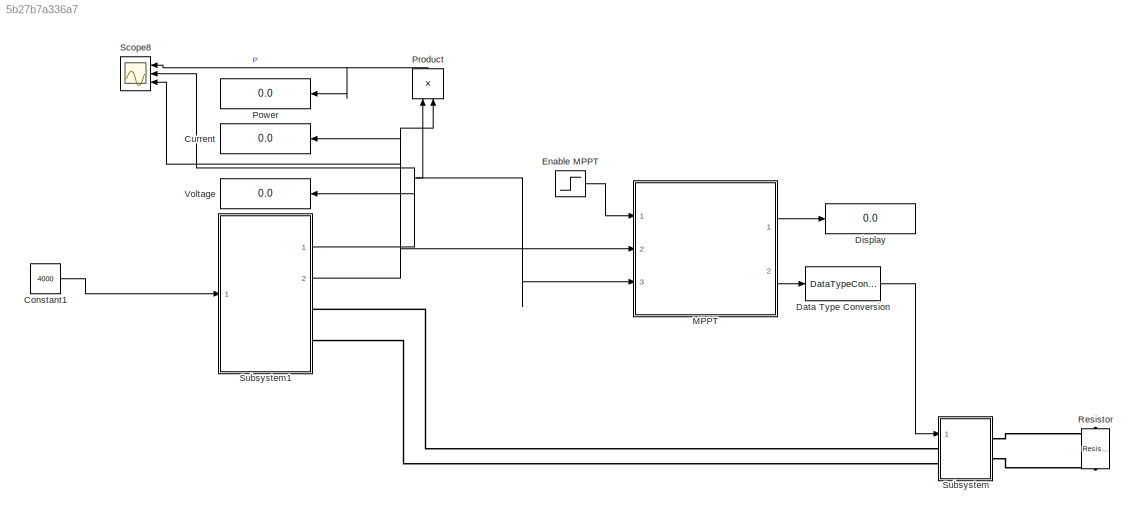
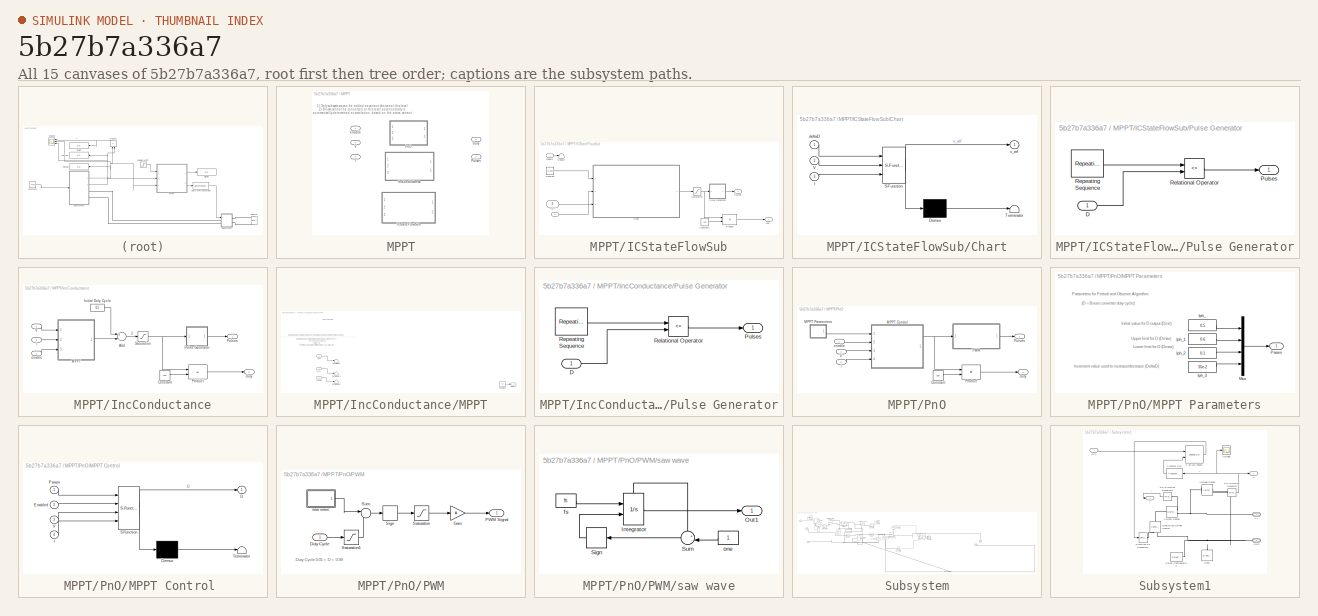
[diagram: thumbnail index - all 15 canvases of the model, root first then tree order]
MODEL slx_5b27b7a336a7
KIND model
BLOCK [Constant] Constant1
  Value = 4000
BLOCK [Display] Current
  Decimation = 1
  Ports = [1]
BLOCK [DataTypeConversion] Data Type Conversion
  OutDataTypeStr = double
  RndMeth = Floor
  SaturateOnIntegerOverflow = off
BLOCK [Display] Display
  Decimation = 1
  Ports = [1]
BLOCK [Step] Enable MPPT
  SampleTime = 0
  Time = 0.002
BLOCK [SubSystem] MPPT
  Ports = [3, 2]
  RequestExecContextInheritance = off
  Variant = on
BLOCK [Inport] MPPT/I
  IconDisplay = Port number
  Port = 3
BLOCK [SubSystem] MPPT/ICStateFlowSub
  Ports = [3, 2]
  RequestExecContextInheritance = off
  VariantControl = MPPT_IC_SF
BLOCK [SubSystem] MPPT/ICStateFlowSub/Chart
  ErrorFcn = Stateflow.Translate.translate
  PermitHierarchicalResolution = ExplicitOnly
  Ports = [3, 1]
  RequestExecContextInheritance = off
  SFBlockType = Chart
  TreatAsAtomicUnit = on
BLOCK [Demux] MPPT/ICStateFlowSub/Chart/ Demux 
  Outputs = 1
  Ports = [1, 1]
BLOCK [S-Function] MPPT/ICStateFlowSub/Chart/ SFunction 
  EnableBusSupport = on
  FunctionName = sf_sfun
  PortCounts = [3 2]
  Ports = [3, 2]
  Tag = Stateflow S-Function solar_cell_simscape 3
BLOCK [Terminator] MPPT/ICStateFlowSub/Chart/ Terminator 
BLOCK [Inport] MPPT/ICStateFlowSub/Chart/I
  IconDisplay = Port number
  Port = 3
BLOCK [Inport] MPPT/ICStateFlowSub/Chart/V
  IconDisplay = Port number
  Port = 2
BLOCK [Inport] MPPT/ICStateFlowSub/Chart/deltaD
  IconDisplay = Port number
BLOCK [Outport] MPPT/ICStateFlowSub/Chart/v_ref
  IconDisplay = Port number
BLOCK [Constant] MPPT/ICStateFlowSub/Constant
  Value = 0.005
BLOCK [Constant] MPPT/ICStateFlowSub/Constant1
  Value = 100
BLOCK [Terminator] MPPT/ICStateFlowSub/Enable 
BLOCK [Inport] MPPT/ICStateFlowSub/I
  IconDisplay = Port number
  Port = 2
BLOCK [Product] MPPT/ICStateFlowSub/Product
  InputSameDT = off
  OutDataTypeStr = Inherit: Inherit via internal rule
  Ports = [2, 1]
  SaturateOnIntegerOverflow = off
BLOCK [SubSystem] MPPT/ICStateFlowSub/Pulse Generator
  Ports = [1, 1]
  RequestExecContextInheritance = off
BLOCK [Inport] MPPT/ICStateFlowSub/Pulse Generator/D
  IconDisplay = Port number
BLOCK [Outport] MPPT/ICStateFlowSub/Pulse Generator/Pulses
  IconDisplay = Port number
BLOCK [RelationalOperator] MPPT/ICStateFlowSub/Pulse Generator/Relational Operator
  InputSameDT = off
  Operator = <=
  OutDataTypeStr = boolean
  Ports = [2, 1]
BLOCK [Reference] MPPT/ICStateFlowSub/Pulse Generator/Repeating Sequence  REF=simulink/Sources/Repeating
Sequence
  Ports = [0, 1]
  SourceBlock = simulink/Sources/Repeating\nSequence
  SourceType = Repeating table
  rep_seq_t = [0  1/Freq]
  rep_seq_y = [0 1]
BLOCK [Outport] MPPT/ICStateFlowSub/Pulses
  IconDisplay = Port number
BLOCK [Saturate] MPPT/ICStateFlowSub/Saturation
  InputPortMap = u0
  LowerLimit = 0
  Ports = [1, 1]
  UpperLimit = 1
BLOCK [Inport] MPPT/ICStateFlowSub/V
  IconDisplay = Port number
  Port = 3
BLOCK [Outport] MPPT/ICStateFlowSub/duty
  IconDisplay = Port number
  Port = 2
BLOCK [Inport] MPPT/ICStateFlowSub/enable
  IconDisplay = Port number
BLOCK [SubSystem] MPPT/IncConductance
  Ports = [3, 2]
  RequestExecContextInheritance = off
  VariantControl = MPPT_IC_logic
BLOCK [Sum] MPPT/IncConductance/Add
  InputSameDT = off
  Inputs = +-
  OutDataTypeStr = Inherit: Inherit via internal rule
  Ports = [2, 1]
  SaturateOnIntegerOverflow = off
BLOCK [Constant] MPPT/IncConductance/Constant
  Value = 100
BLOCK [Inport] MPPT/IncConductance/I
  IconDisplay = Port number
  Port = 3
BLOCK [Constant] MPPT/IncConductance/Initial Duty Cycle
  Value = 0.5
BLOCK [SubSystem] MPPT/IncConductance/MPPT
  Ports = [3, 1]
  RequestExecContextInheritance = off
BLOCK [Constant] MPPT/IncConductance/MPPT/Constant
  Value = 40
BLOCK [Outport] MPPT/IncConductance/MPPT/Delta_D
  IconDisplay = Port number
BLOCK [Inport] MPPT/IncConductance/MPPT/I_PV
  IconDisplay = Port number
  Port = 2
BLOCK [Terminator] MPPT/IncConductance/MPPT/Terminator
BLOCK [Terminator] MPPT/IncConductance/MPPT/Terminator1
BLOCK [Terminator] MPPT/IncConductance/MPPT/Terminator2
BLOCK [Inport] MPPT/IncConductance/MPPT/V_PV
  IconDisplay = Port number
BLOCK [Inport] MPPT/IncConductance/MPPT/enable
  IconDisplay = Port number
  Port = 3
BLOCK [Product] MPPT/IncConductance/Product
  InputSameDT = off
  OutDataTypeStr = Inherit: Inherit via internal rule
  Ports = [2, 1]
  SaturateOnIntegerOverflow = off
BLOCK [SubSystem] MPPT/IncConductance/Pulse Generator
  Ports = [1, 1]
  RequestExecContextInheritance = off
BLOCK [Inport] MPPT/IncConductance/Pulse Generator/D
  IconDisplay = Port number
BLOCK [Outport] MPPT/IncConductance/Pulse Generator/Pulses
  IconDisplay = Port number
BLOCK [RelationalOperator] MPPT/IncConductance/Pulse Generator/Relational Operator
  InputSameDT = off
  Operator = <=
  OutDataTypeStr = boolean
  Ports = [2, 1]
BLOCK [Reference] MPPT/IncConductance/Pulse Generator/Repeating Sequence  REF=simulink/Sources/Repeating
Sequence
  Ports = [0, 1]
  SourceBlock = simulink/Sources/Repeating\nSequence
  SourceType = Repeating table
  rep_seq_t = [0  1/Freq]
  rep_seq_y = [0 1]
BLOCK [Outport] MPPT/IncConductance/Pulses
  IconDisplay = Port number
BLOCK [Saturate] MPPT/IncConductance/Saturation
  InputPortMap = u0
  LowerLimit = 0
  Ports = [1, 1]
  UpperLimit = 1
  ZeroCross = off
BLOCK [Inport] MPPT/IncConductance/V
  IconDisplay = Port number
  Port = 2
BLOCK [Outport] MPPT/IncConductance/duty
  IconDisplay = Port number
  Port = 2
BLOCK [Inport] MPPT/IncConductance/enable
  IconDisplay = Port number
BLOCK [SubSystem] MPPT/PnO
  Ports = [3, 2]
  RequestExecContextInheritance = off
  VariantControl = MPPT_PnO
BLOCK [Constant] MPPT/PnO/Constant
  Value = 100
BLOCK [Inport] MPPT/PnO/I
  IconDisplay = Port number
  Port = 3
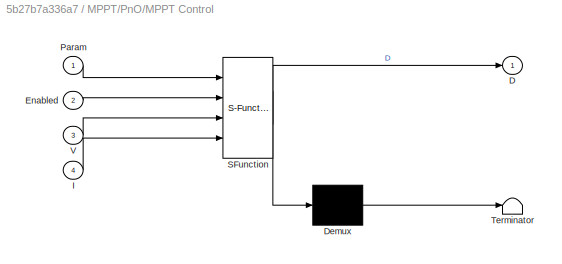
BLOCK [SubSystem] MPPT/PnO/MPPT Control 
  ErrorFcn = Stateflow.Translate.translate
  PermitHierarchicalResolution = ExplicitOnly
  Ports = [4, 1]
  RequestExecContextInheritance = off
  SFBlockType = MATLAB Function
  TreatAsAtomicUnit = on
BLOCK [Demux] MPPT/PnO/MPPT Control / Demux 
  Outputs = 1
  Ports = [1, 1]
BLOCK [S-Function] MPPT/PnO/MPPT Control / SFunction 
  EnableBusSupport = on
  FunctionName = sf_sfun
  PortCounts = [4 2]
  Ports = [4, 2]
  Tag = Stateflow S-Function solar_cell_simscape 2
BLOCK [Terminator] MPPT/PnO/MPPT Control / Terminator 
BLOCK [Outport] MPPT/PnO/MPPT Control /D
  IconDisplay = Port number
BLOCK [Inport] MPPT/PnO/MPPT Control /Enabled
  IconDisplay = Port number
  Port = 2
BLOCK [Inport] MPPT/PnO/MPPT Control /I
  IconDisplay = Port number
  Port = 4
BLOCK [Inport] MPPT/PnO/MPPT Control /Param
  IconDisplay = Port number
BLOCK [Inport] MPPT/PnO/MPPT Control /V
  IconDisplay = Port number
  Port = 3
BLOCK [SubSystem] MPPT/PnO/MPPT Parameters
  Ports = [0, 1]
  RequestExecContextInheritance = off
BLOCK [Constant] MPPT/PnO/MPPT Parameters/Iph_
  Value = 0.5
BLOCK [Constant] MPPT/PnO/MPPT Parameters/Iph_1
  Value = 0.6
BLOCK [Constant] MPPT/PnO/MPPT Parameters/Iph_2
  Value = 0.1
BLOCK [Constant] MPPT/PnO/MPPT Parameters/Iph_3
  Value = 35e-2
BLOCK [Mux] MPPT/PnO/MPPT Parameters/Mux
  DisplayOption = bar
  Ports = [4, 1]
BLOCK [Outport] MPPT/PnO/MPPT Parameters/Param
  IconDisplay = Port number
BLOCK [SubSystem] MPPT/PnO/PWM
  Ports = [1, 1]
  RequestExecContextInheritance = off
BLOCK [Inport] MPPT/PnO/PWM/Duty Cycle
  IconDisplay = Port number
BLOCK [Gain] MPPT/PnO/PWM/Gain
  Gain = A
  OutDataTypeStr = Inherit: Inherit via internal rule
  ParamDataTypeStr = Inherit: Inherit via internal rule
  SaturateOnIntegerOverflow = off
BLOCK [Outport] MPPT/PnO/PWM/PWM Signal
  IconDisplay = Port number
BLOCK [Saturate] MPPT/PnO/PWM/Saturation
  InputPortMap = u0
  LowerLimit = 0
  Ports = [1, 1]
  UpperLimit = 1
BLOCK [Saturate] MPPT/PnO/PWM/Saturation1
  InputPortMap = u0
  LowerLimit = 0.01
  Ports = [1, 1]
  UpperLimit = 0.99
BLOCK [Signum] MPPT/PnO/PWM/Sign
BLOCK [Sum] MPPT/PnO/PWM/Sum
  IconShape = round
  InputSameDT = off
  Inputs = |-+
  OutDataTypeStr = Inherit: Inherit via internal rule
  Ports = [2, 1]
  SaturateOnIntegerOverflow = off
BLOCK [SubSystem] MPPT/PnO/PWM/saw wave
  Ports = [0, 1]
  RequestExecContextInheritance = off
BLOCK [Integrator] MPPT/PnO/PWM/saw wave/Integrator
  ExternalReset = rising
  Ports = [2, 1, 0, 0, 1]
  ShowStatePort = on
BLOCK [Outport] MPPT/PnO/PWM/saw wave/Out1
  IconDisplay = Port number
BLOCK [Signum] MPPT/PnO/PWM/saw wave/Sign
BLOCK [Sum] MPPT/PnO/PWM/saw wave/Sum
  IconShape = round
  InputSameDT = off
  Inputs = +-|
  OutDataTypeStr = Inherit: Inherit via internal rule
  Ports = [2, 1]
  SaturateOnIntegerOverflow = off
BLOCK [Constant] MPPT/PnO/PWM/saw wave/fs
  Value = fs
BLOCK [Constant] MPPT/PnO/PWM/saw wave/one
BLOCK [Product] MPPT/PnO/Product
  InputSameDT = off
  OutDataTypeStr = Inherit: Inherit via internal rule
  Ports = [2, 1]
  SaturateOnIntegerOverflow = off
BLOCK [Outport] MPPT/PnO/Pulses
  IconDisplay = Port number
BLOCK [Inport] MPPT/PnO/V
  IconDisplay = Port number
  Port = 2
BLOCK [Outport] MPPT/PnO/duty
  IconDisplay = Port number
  Port = 2
BLOCK [Inport] MPPT/PnO/enable
  IconDisplay = Port number
BLOCK [Outport] MPPT/Pulses
  IconDisplay = Port number
  Port = 2
BLOCK [Inport] MPPT/V
  IconDisplay = Port number
  Port = 2
BLOCK [Outport] MPPT/duty
  IconDisplay = Port number
BLOCK [Inport] MPPT/enable
  IconDisplay = Port number
BLOCK [Display] Power
  Decimation = 1
  Ports = [1]
BLOCK [Product] Product
  InputSameDT = off
  OutDataTypeStr = Inherit: Inherit via internal rule
  Ports = [2, 1]
  SaturateOnIntegerOverflow = off
BLOCK [Reference] Resistor  REF=fl_lib/Electrical/Electrical Elements/Resistor
  ClassName = resistor
  ComponentPath = foundation.electrical.elements.resistor
  ComponentVariantNames = resistor
  ComponentVariants = foundation.electrical.elements.resistor
  Ports = [0, 0, 0, 0, 0, 1, 1]
  R = 30
  R_unit = Ohm
  SchemaVersion = 1
  SourceBlock = fl_lib/Electrical/Electrical Elements/Resistor
  SourceFile = foundation.electrical.elements.resistor
  SourceType = Resistor
  i = 0
  i_priority = High
  i_specify = off
  i_unit = A
  v = 0
  v_priority = High
  v_specify = off
  v_unit = V
BLOCK [Scope] Scope8
  DataFormat = StructureWithTime
  Floating = off
  LimitDataPoints = off
  NumInputPorts = 3
  Ports = [3]
  SampleTime = 0
  SaveName = ScopeData9
  ShowLegends = off
  YMax = 2e+07~2.75~7e+06
  YMin = -1e+07~2~-4e+06
  ZoomMode = yonly
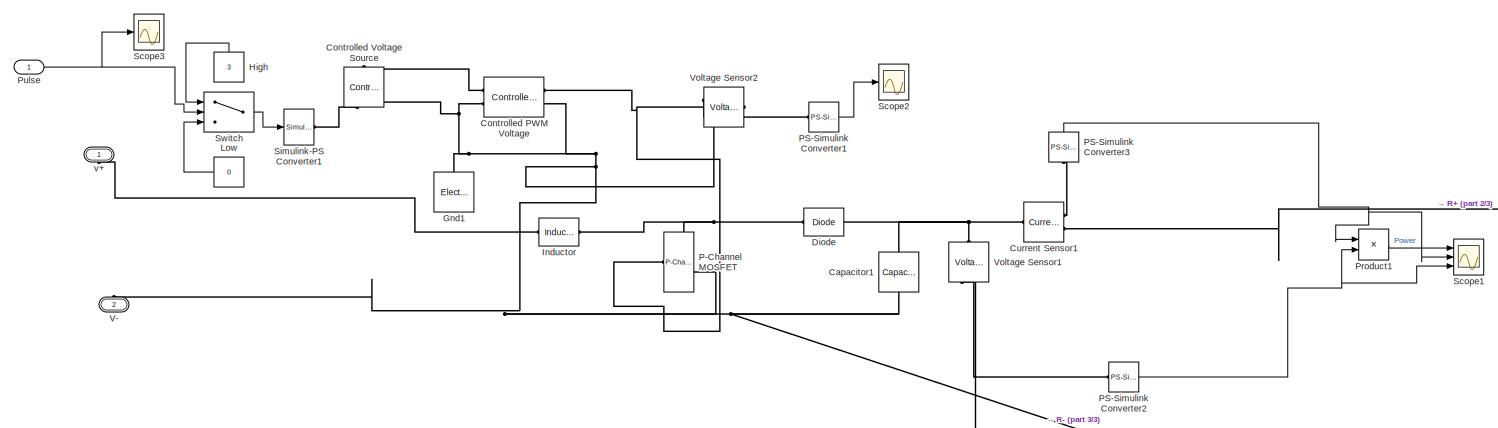
[diagram: Subsystem - part 1/3, middle left region]
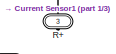
[diagram: Subsystem - part 2/3, middle right region]
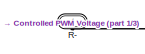
[diagram: Subsystem - part 3/3, middle right region]
BLOCK [SubSystem] Subsystem
  Ports = [1, 0, 0, 0, 0, 2, 2]
  RequestExecContextInheritance = off
BLOCK [Reference] Subsystem/Capacitor1  REF=fl_lib/Electrical/Electrical Elements/Capacitor
  ClassName = capacitor
  ComponentPath = foundation.electrical.elements.capacitor
  ComponentVariantNames = capacitor
  ComponentVariants = foundation.electrical.elements.capacitor
  Ports = [0, 0, 0, 0, 0, 1, 1]
  SchemaVersion = 1
  SourceBlock = fl_lib/Electrical/Electrical Elements/Capacitor
  SourceFile = foundation.electrical.elements.capacitor
  SourceType = Capacitor
  c = 33e-6
  c_unit = F
  g = 0
  g_unit = 1/Ohm
  i = 0
  i_priority = High
  i_specify = off
  i_unit = A
  r = 1e-6
  r_unit = Ohm
  v = 0
  v_priority = High
  v_specify = off
  v_unit = V
  vc = 0
  vc_priority = High
  vc_specify = off
  vc_unit = V
BLOCK [Reference] Subsystem/Controlled PWM Voltage  REF=elec_lib/Actuators & Drivers/Drivers/Controlled PWM
Voltage
  ClassName = controlled_pwm
  ComponentPath = elec.actuators.drivers.controlled_pwm
  ComponentVariantNames = controlled_pwm
  ComponentVariants = elec.actuators.drivers.controlled_pwm
  F = 1
  F_unit = Hz
  Ports = [0, 0, 0, 0, 0, 2, 2]
  SchemaVersion = 1
  SourceBlock = elec_lib/Actuators & Drivers/Drivers/Controlled PWM\nVoltage
  SourceFile = elec.actuators.drivers.controlled_pwm
  SourceType = Controlled PWM\nVoltage
  TD = 0
  TD_unit = s
  Vm = 3
  Vm_unit = V
  Vmax = 3
  Vmax_unit = V
  Vmin = 0
  Vmin_unit = V
  event_type = 1
  event_type_unit = 1
  pulse_width_offset = 0
  pulse_width_offset_unit = s
  pwm_or_av = 1
  pwm_or_av_unit = 1
  sample_time = 1e-6
  sample_time_unit = s
BLOCK [Reference] Subsystem/Controlled Voltage Source  REF=fl_lib/Electrical/Electrical Sources/Controlled Voltage
Source
  ClassName = controlled_voltage
  ComponentPath = foundation.electrical.sources.controlled_voltage
  ComponentVariantNames = controlled_voltage
  ComponentVariants = foundation.electrical.sources.controlled_voltage
  Ports = [0, 0, 0, 0, 0, 1, 2]
  SchemaVersion = 1
  SourceBlock = fl_lib/Electrical/Electrical Sources/Controlled Voltage\nSource
  SourceFile = foundation.electrical.sources.controlled_voltage
  SourceType = Controlled Voltage\nSource
BLOCK [Reference] Subsystem/Current Sensor1  REF=fl_lib/Electrical/Electrical Sensors/Current Sensor
  ClassName = current
  ComponentPath = foundation.electrical.sensors.current
  ComponentVariantNames = current
  ComponentVariants = foundation.electrical.sensors.current
  Ports = [0, 0, 0, 0, 0, 1, 2]
  SchemaVersion = 1
  SourceBlock = fl_lib/Electrical/Electrical Sensors/Current Sensor
  SourceFile = foundation.electrical.sensors.current
  SourceType = Current Sensor
BLOCK [Reference] Subsystem/Diode  REF=fl_lib/Electrical/Electrical Elements/Diode
  ClassName = pwl_diode
  ComponentPath = foundation.electrical.elements.pwl_diode
  ComponentVariantNames = pwl_diode
  ComponentVariants = foundation.electrical.elements.pwl_diode
  Goff = 1e-8
  Goff_unit = 1/Ohm
  Ports = [0, 0, 0, 0, 0, 1, 1]
  Ron = 1e-4
  Ron_unit = Ohm
  SchemaVersion = 1
  SourceBlock = fl_lib/Electrical/Electrical Elements/Diode
  SourceFile = foundation.electrical.elements.pwl_diode
  SourceType = Diode
  Vf = 0.6
  Vf_unit = V
  i = 0
  i_priority = High
  i_specify = off
  i_unit = A
  v = 0
  v_priority = High
  v_specify = off
  v_unit = V
BLOCK [Reference] Subsystem/Gnd1  REF=fl_lib/Electrical/Electrical Elements/Electrical Reference
  ClassName = reference
  ComponentPath = foundation.electrical.elements.reference
  ComponentVariantNames = reference
  ComponentVariants = foundation.electrical.elements.reference
  Ports = [0, 0, 0, 0, 0, 1]
  SchemaVersion = 1
  SourceBlock = fl_lib/Electrical/Electrical Elements/Electrical Reference
  SourceFile = foundation.electrical.elements.reference
  SourceType = Electrical Reference
BLOCK [Constant] Subsystem/High
  Value = 3
BLOCK [Reference] Subsystem/Inductor  REF=fl_lib/Electrical/Electrical Elements/Inductor
  ClassName = inductor
  ComponentPath = foundation.electrical.elements.inductor
  ComponentVariantNames = inductor
  ComponentVariants = foundation.electrical.elements.inductor
  Ports = [0, 0, 0, 0, 0, 1, 1]
  SchemaVersion = 1
  SourceBlock = fl_lib/Electrical/Electrical Elements/Inductor
  SourceFile = foundation.electrical.elements.inductor
  SourceType = Inductor
  g = 1e-9
  g_unit = 1/Ohm
  i = 0
  i_L = 0
  i_L_priority = High
  i_L_specify = off
  i_L_unit = A
  i_priority = High
  i_specify = off
  i_unit = A
  l = 5e-3
  l_unit = H
  r = 0.005
  r_unit = Ohm
  v = 0
  v_priority = High
  v_specify = off
  v_unit = V
BLOCK [Constant] Subsystem/Low
  Value = 0
BLOCK [Reference] Subsystem/P-Channel MOSFET  REF=elec_lib/Semiconductor
Devices/P-Channel MOSFET
  BEXDatasheet = -1.5
  BEXDatasheet_unit = 1
  BEXEquCoeff = -1.5
  BEXEquCoeff_unit = 1
  Beta = 2
  Beta_unit = A/V^2
  C_GD = 45
  C_GD_unit = pF
  C_GS = 225
  C_GS_unit = pF
  C_OX = 200
  C_OX_unit = pF
  C_iss = 270
  C_iss_unit = pF
  C_oss = 0
  C_oss_unit = pF
  C_param = 1
  C_param_unit = 1
  C_rss = 45
  C_rss_unit = pF
  ClassName = Simscape variant
  ComponentPath = elec.semiconductors.p_mosfet
  ComponentVariantNames = No thermal port, Show thermal port
  ComponentVariants = elec.semiconductors.p_mosfet, elec.semiconductors.p_mosfet_thermal
  Id = -2.5
  Id_unit = A
  Ports = [0, 0, 0, 0, 0, 1, 2]
  RD = 0.01
  RD_unit = Ohm
  RS = 1e-4
  RS_unit = Ohm
  Rds = 0.167
  Rds_T2 = 0.25
  Rds_T2_unit = Ohm
  Rds_unit = Ohm
  Rth = [ 0 10 ]
  Rth_unit = K/W
  SchemaVersion = 1
  SourceBlock = elec_lib/Semiconductor\nDevices/P-Channel MOSFET
  SourceFile = elec.semiconductors.p_mosfet
  SourceType = P-Channel MOSFET
  TdeviceDatasheet = 25
  TdeviceDatasheet_unit = C
  TdeviceEquCoeff = 25
  TdeviceEquCoeff_unit = C
  Tmeas = 25
  Tmeas2 = 125
  Tmeas2_unit = C
  Tmeas_unit = C
  V_C_OX = 0.5
  V_C_OX_unit = V
  Vgs = -4.5
  Vgs_unit = V
  Vth = -1.4
  Vth_unit = V
  charge_linearity_param = 1
  charge_linearity_param_unit = 1
  dVth_dT = 2
  dVth_dT_unit = mV/K
  lam = 0
  lam_unit = 1/V
  parameterization = 1
  parameterization_unit = 1
  prmDatasheet = 1
  prmDatasheet_unit = 1
  prmEquCoeff = 1
  prmEquCoeff_unit = 1
  thermal_mass = [ 0 1 ]
  thermal_mass_initial_temperatures = [ 25 25 ]
  thermal_mass_initial_temperatures_unit = C
  thermal_mass_parameterization = 1
  thermal_mass_parameterization_unit = 1
  thermal_mass_unit = J/K
  thermal_time_constant = [ 0 10 ]
  thermal_time_constant_unit = s
BLOCK [Reference] Subsystem/PS-Simulink Converter1  REF=nesl_utility/PS-Simulink
Converter
  AffineConversion = off
  Frequencies = []
  LeftPortType = input
  PhysicalDomain = network_engine_domain
  Ports = [0, 1, 0, 0, 0, 1]
  PseudoPeriodic = off
  RightPortType = output
  SourceBlock = nesl_utility/PS-Simulink\nConverter
  SourceType = PS-Simulink\nConverter
  SubClassName = ps_output
  Unit = 1
BLOCK [Reference] Subsystem/PS-Simulink Converter2  REF=nesl_utility/PS-Simulink
Converter
  AffineConversion = off
  Frequencies = []
  LeftPortType = input
  PhysicalDomain = network_engine_domain
  Ports = [0, 1, 0, 0, 0, 1]
  PseudoPeriodic = off
  RightPortType = output
  SourceBlock = nesl_utility/PS-Simulink\nConverter
  SourceType = PS-Simulink\nConverter
  SubClassName = ps_output
  Unit = 1
BLOCK [Reference] Subsystem/PS-Simulink Converter3  REF=nesl_utility/PS-Simulink
Converter
  AffineConversion = off
  Frequencies = []
  LeftPortType = input
  PhysicalDomain = network_engine_domain
  Ports = [0, 1, 0, 0, 0, 1]
  PseudoPeriodic = off
  RightPortType = output
  SourceBlock = nesl_utility/PS-Simulink\nConverter
  SourceType = PS-Simulink\nConverter
  SubClassName = ps_output
  Unit = 1
BLOCK [Product] Subsystem/Product1
  InputSameDT = off
  OutDataTypeStr = Inherit: Inherit via internal rule
  Ports = [2, 1]
  SaturateOnIntegerOverflow = off
BLOCK [Inport] Subsystem/Pulse
  IconDisplay = Port number
BLOCK [PMIOPort] Subsystem/R+
  Port = 3
  Side = Right
BLOCK [PMIOPort] Subsystem/R-
  Port = 4
  Side = Right
BLOCK [Scope] Subsystem/Scope1
  DataFormat = StructureWithTime
  Floating = off
  LimitDataPoints = off
  NumInputPorts = 3
  Ports = [3]
  SampleTime = 0
  ShowLegends = off
  YMax = 0.8925~0.1725~5.17
  YMin = 0.86~0.1695~5.085
  ZoomMode = yonly
BLOCK [Scope] Subsystem/Scope2
  DataFormat = StructureWithTime
  Floating = off
  LimitDataPoints = off
  NumInputPorts = 1
  Ports = [1]
  SampleTime = 0
  SaveName = ScopeData1
  ShowLegends = off
  YMax = 3
  YMin = 3
  ZoomMode = xonly
BLOCK [Scope] Subsystem/Scope3
  DataFormat = StructureWithTime
  Floating = off
  LimitDataPoints = off
  NumInputPorts = 1
  Ports = [1]
  SampleTime = 0
  SaveName = ScopeData2
  ShowLegends = off
  YMax = 1.05
  YMin = 0.95
  ZoomMode = xonly
BLOCK [Reference] Subsystem/Simulink-PS Converter1  REF=nesl_utility/Simulink-PS
Converter
  AffineConversion = off
  Frequencies = []
  InputFilterTimeConstant = 0.001
  InputFiltering = off
  LeftPortType = input
  NoiseDistribution = none
  NoiseParameters = []
  PhysicalDomain = network_engine_domain
  Ports = [1, 0, 0, 0, 0, 0, 1]
  PseudoPeriodic = off
  RightPortType = output
  SimscapeFilterOrder = 1
  SourceBlock = nesl_utility/Simulink-PS\nConverter
  SourceType = Simulink-PS\nConverter
  SubClassName = ps_input
  UdotUserProvided = 1
  Unit = 1
BLOCK [Switch] Subsystem/Switch
  Criteria = u2 > Threshold
  InputSameDT = off
  SaturateOnIntegerOverflow = off
BLOCK [PMIOPort] Subsystem/V-
  Port = 2
  Side = Left
BLOCK [Reference] Subsystem/Voltage Sensor1  REF=fl_lib/Electrical/Electrical Sensors/Voltage Sensor
  ClassName = voltage
  ComponentPath = foundation.electrical.sensors.voltage
  ComponentVariantNames = voltage
  ComponentVariants = foundation.electrical.sensors.voltage
  Ports = [0, 0, 0, 0, 0, 1, 2]
  SchemaVersion = 1
  SourceBlock = fl_lib/Electrical/Electrical Sensors/Voltage Sensor
  SourceFile = foundation.electrical.sensors.voltage
  SourceType = Voltage Sensor
BLOCK [Reference] Subsystem/Voltage Sensor2  REF=fl_lib/Electrical/Electrical Sensors/Voltage Sensor
  ClassName = voltage
  ComponentPath = foundation.electrical.sensors.voltage
  ComponentVariantNames = voltage
  ComponentVariants = foundation.electrical.sensors.voltage
  Ports = [0, 0, 0, 0, 0, 1, 2]
  SchemaVersion = 1
  SourceBlock = fl_lib/Electrical/Electrical Sensors/Voltage Sensor
  SourceFile = foundation.electrical.sensors.voltage
  SourceType = Voltage Sensor
BLOCK [PMIOPort] Subsystem/v+
  Port = 1
  Side = Left
BLOCK [SubSystem] Subsystem1
  Ports = [1, 2, 0, 0, 0, 0, 2]
  RequestExecContextInheritance = off
BLOCK [Lookup_n-D] Subsystem1/0 -5k Lux lookup
  BreakpointsForDimension1 = Irradiance
  BreakpointsForDimension2 = ArrayVoltage
  Ports = [2, 1]
  RndMeth = Simplest
  Table = ArrayCurrent
BLOCK [Reference] Subsystem1/Controlled Current Source  REF=fl_lib/Electrical/Electrical Sources/Controlled Current
Source
  ClassName = controlled_current
  ComponentPath = foundation.electrical.sources.controlled_current
  ComponentVariantNames = controlled_current
  ComponentVariants = foundation.electrical.sources.controlled_current
  Ports = [0, 0, 0, 0, 0, 1, 2]
  SchemaVersion = 1
  SourceBlock = fl_lib/Electrical/Electrical Sources/Controlled Current\nSource
  SourceFile = foundation.electrical.sources.controlled_current
  SourceType = Controlled Current\nSource
BLOCK [Reference] Subsystem1/Current Sensor  REF=fl_lib/Electrical/Electrical Sensors/Current Sensor
  ClassName = current
  ComponentPath = foundation.electrical.sensors.current
  ComponentVariantNames = current
  ComponentVariants = foundation.electrical.sensors.current
  Ports = [0, 0, 0, 0, 0, 1, 2]
  SchemaVersion = 1
  SourceBlock = fl_lib/Electrical/Electrical Sensors/Current Sensor
  SourceFile = foundation.electrical.sensors.current
  SourceType = Current Sensor
BLOCK [PMIOPort] Subsystem1/GND
  Port = 2
  Side = Right
BLOCK [Reference] Subsystem1/Gnd1  REF=fl_lib/Electrical/Electrical Elements/Electrical Reference
  ClassName = reference
  ComponentPath = foundation.electrical.elements.reference
  ComponentVariantNames = reference
  ComponentVariants = foundation.electrical.elements.reference
  Ports = [0, 0, 0, 0, 0, 1]
  SchemaVersion = 1
  SourceBlock = fl_lib/Electrical/Electrical Elements/Electrical Reference
  SourceFile = foundation.electrical.elements.reference
  SourceType = Electrical Reference
BLOCK [Outport] Subsystem1/I
  IconDisplay = Port number
BLOCK [Inport] Subsystem1/LUX
  IconDisplay = Port number
BLOCK [Reference] Subsystem1/PS-Simulink Converter  REF=nesl_utility/PS-Simulink
Converter
  AffineConversion = off
  Frequencies = []
  LeftPortType = input
  PhysicalDomain = network_engine_domain
  Ports = [0, 1, 0, 0, 0, 1]
  PseudoPeriodic = off
  RightPortType = output
  SourceBlock = nesl_utility/PS-Simulink\nConverter
  SourceType = PS-Simulink\nConverter
  SubClassName = ps_output
  Unit = 1
BLOCK [Reference] Subsystem1/PS-Simulink Converter1  REF=nesl_utility/PS-Simulink
Converter
  AffineConversion = off
  Frequencies = []
  LeftPortType = input
  PhysicalDomain = network_engine_domain
  Ports = [0, 1, 0, 0, 0, 1]
  PseudoPeriodic = off
  RightPortType = output
  SourceBlock = nesl_utility/PS-Simulink\nConverter
  SourceType = PS-Simulink\nConverter
  SubClassName = ps_output
  Unit = 1
BLOCK [Reference] Subsystem1/Simulink-PS Converter1  REF=nesl_utility/Simulink-PS
Converter
  AffineConversion = off
  Frequencies = []
  InputFilterTimeConstant = 0.001
  InputFiltering = off
  LeftPortType = input
  NoiseDistribution = none
  NoiseParameters = []
  PhysicalDomain = network_engine_domain
  Ports = [1, 0, 0, 0, 0, 0, 1]
  PseudoPeriodic = off
  RightPortType = output
  SimscapeFilterOrder = 1
  SourceBlock = nesl_utility/Simulink-PS\nConverter
  SourceType = Simulink-PS\nConverter
  SubClassName = ps_input
  UdotUserProvided = 1
  Unit = 1
BLOCK [Reference] Subsystem1/Solver Configuration  REF=nesl_utility/Solver
Configuration
  AbsTol = 1e-06
  Accelerate = off
  AutomaticFiltering = on
  DelaysMemoryBudget = 1024
  DoDC = off
  DoFixedCost = off
  EnableSwitchedLinearOptims = on
  FilteringTimeConstant = 0.001
  FrequencyDomain = off
  Harmonics = []
  LeftPortType = input
  LinearAlgebra = Sparse
  LocalSolverChoice = NE_BACKWARD_EULER_ADVANCER
  LocalSolverSampleTime = 0.001
  MaxModeIter = 2
  MaxNonlinIter = 3
  MinStep = 1e-09
  PhysicalDomain = network_engine_domain
  Ports = [0, 0, 0, 0, 0, 0, 1]
  Profile = off
  RelTol = 0.001
  ResidualTolerance = 1e-09
  RightPortType = generic
  SimulateNoise = off
  SourceBlock = nesl_utility/Solver\nConfiguration
  SourceType = Solver\nConfiguration
  SubClassName = solver
  ToWorkspace = off
  Tones = []
  UseCCode = off
  UseLocalSampling = off
  UseLocalSolver = off
BLOCK [Reference] Subsystem1/Transfer Fcn  REF=simulink_extras/Additional
Linear/Transfer Fcn
(with initial states)
  D = [.0001  1]
  N = [1]
  Ports = [1, 1]
  SourceBlock = simulink_extras/Additional\nLinear/Transfer Fcn\n(with initial states)
  SourceType = Transfer Function with Initial States
  X0 = 0
BLOCK [Outport] Subsystem1/V
  IconDisplay = Port number
  Port = 2
BLOCK [PMIOPort] Subsystem1/V+
  Port = 1
  Side = Right
BLOCK [Scope] Subsystem1/Voltage
  DataFormat = StructureWithTime
  Floating = off
  LimitDataPoints = off
  NumInputPorts = 1
  Ports = [1]
  SampleTime = 0
  SaveName = ScopeData6
  ShowLegends = off
  YMax = 0.815936
  YMin = 0.815936
BLOCK [Reference] Subsystem1/Voltage Sensor  REF=fl_lib/Electrical/Electrical Sensors/Voltage Sensor
  ClassName = voltage
  ComponentPath = foundation.electrical.sensors.voltage
  ComponentVariantNames = voltage
  ComponentVariants = foundation.electrical.sensors.voltage
  Ports = [0, 0, 0, 0, 0, 1, 2]
  SchemaVersion = 1
  SourceBlock = fl_lib/Electrical/Electrical Sensors/Voltage Sensor
  SourceFile = foundation.electrical.sensors.voltage
  SourceType = Voltage Sensor
BLOCK [Display] Voltage
  Decimation = 1
  Ports = [1]
ANNOTATION MPPT: 1) Only subsystems can be added as variant choices at this level 2) Blocks cannot be connected at this level as connectivity is automatically determined at simulation, based on the active variant
ANNOTATION MPPT/IncConductance/MPPT: MPPT Controller
ANNOTATION MPPT/IncConductance/MPPT: Maximum power point tracking by incremental conductance method + Integral regulator ------------------------------------------------------------------------------------------------------------- Maximum power point is obtained when dP/dV=0 where P= V*I -> d(V*I)/dV = I + V*dI/dV = 0 -> dI/dV = -I/V The integral regulator minimizes the error (dI/dV + I/V) Regulator output = Duty cycle correction
ANNOTATION MPPT/PnO/MPPT Parameters: (D = Boost converter duty cycle)
ANNOTATION MPPT/PnO/MPPT Parameters: Increment value used to increase/decrease (DeltaD)
ANNOTATION MPPT/PnO/MPPT Parameters: Initial value for D output (Dinit)
ANNOTATION MPPT/PnO/MPPT Parameters: Lower limit for D (Dmax)
ANNOTATION MPPT/PnO/MPPT Parameters: Parameters for Perturb and Observe Algorithm:
ANNOTATION MPPT/PnO/MPPT Parameters: Upper limit for D (Dmax)
ANNOTATION MPPT/PnO/PWM: Duty Cycle 0.01 < D < 0.99
LINE Constant1:1 -> Subsystem1:1
LINE Data Type Conversion:1 -> Subsystem:1
LINE Enable MPPT:1 -> MPPT:1
LINE MPPT/ICStateFlowSub/Chart:1 -> MPPT/ICStateFlowSub/Saturation:1
LINE MPPT/ICStateFlowSub/Constant1:1 -> MPPT/ICStateFlowSub/Product:2
LINE MPPT/ICStateFlowSub/Constant:1 -> MPPT/ICStateFlowSub/Chart:1
LINE MPPT/ICStateFlowSub/I:1 -> MPPT/ICStateFlowSub/Chart:3
LINE MPPT/ICStateFlowSub/Product:1 -> MPPT/ICStateFlowSub/duty:1
LINE MPPT/ICStateFlowSub/Pulse Generator/D:1 -> MPPT/ICStateFlowSub/Pulse Generator/Relational Operator:2
LINE MPPT/ICStateFlowSub/Pulse Generator/Relational Operator:1 -> MPPT/ICStateFlowSub/Pulse Generator/Pulses:1
LINE MPPT/ICStateFlowSub/Pulse Generator/Repeating Sequence:1 -> MPPT/ICStateFlowSub/Pulse Generator/Relational Operator:1
LINE MPPT/ICStateFlowSub/Pulse Generator:1 -> MPPT/ICStateFlowSub/Pulses:1
NET MPPT/ICStateFlowSub/Saturation:1 -> MPPT/ICStateFlowSub/Product:1, MPPT/ICStateFlowSub/Pulse Generator:1
LINE MPPT/ICStateFlowSub/V:1 -> MPPT/ICStateFlowSub/Chart:2
LINE MPPT/ICStateFlowSub/enable:1 -> MPPT/ICStateFlowSub/Enable :1
LINE MPPT/IncConductance/Add:1 -> MPPT/IncConductance/Saturation:1
LINE MPPT/IncConductance/Constant:1 -> MPPT/IncConductance/Product:2
LINE MPPT/IncConductance/I:1 -> MPPT/IncConductance/MPPT:2
LINE MPPT/IncConductance/Initial Duty Cycle:1 -> MPPT/IncConductance/Add:1
LINE MPPT/IncConductance/MPPT/Constant:1 -> MPPT/IncConductance/MPPT/Delta_D:1
LINE MPPT/IncConductance/MPPT/I_PV:1 -> MPPT/IncConductance/MPPT/Terminator:1
LINE MPPT/IncConductance/MPPT/V_PV:1 -> MPPT/IncConductance/MPPT/Terminator1:1
LINE MPPT/IncConductance/MPPT/enable:1 -> MPPT/IncConductance/MPPT/Terminator2:1
LINE MPPT/IncConductance/MPPT:1 -> MPPT/IncConductance/Add:2
LINE MPPT/IncConductance/Product:1 -> MPPT/IncConductance/duty:1
LINE MPPT/IncConductance/Pulse Generator/D:1 -> MPPT/IncConductance/Pulse Generator/Relational Operator:2
LINE MPPT/IncConductance/Pulse Generator/Relational Operator:1 -> MPPT/IncConductance/Pulse Generator/Pulses:1
LINE MPPT/IncConductance/Pulse Generator/Repeating Sequence:1 -> MPPT/IncConductance/Pulse Generator/Relational Operator:1
LINE MPPT/IncConductance/Pulse Generator:1 -> MPPT/IncConductance/Pulses:1
NET MPPT/IncConductance/Saturation:1 -> MPPT/IncConductance/Product:1, MPPT/IncConductance/Pulse Generator:1
LINE MPPT/IncConductance/V:1 -> MPPT/IncConductance/MPPT:1
LINE MPPT/IncConductance/enable:1 -> MPPT/IncConductance/MPPT:3
LINE MPPT/PnO/Constant:1 -> MPPT/PnO/Product:2
LINE MPPT/PnO/I:1 -> MPPT/PnO/MPPT Control :4
NET MPPT/PnO/MPPT Control :1 -> MPPT/PnO/PWM:1, MPPT/PnO/Product:1
LINE MPPT/PnO/MPPT Parameters/Iph_1:1 -> MPPT/PnO/MPPT Parameters/Mux:2
LINE MPPT/PnO/MPPT Parameters/Iph_2:1 -> MPPT/PnO/MPPT Parameters/Mux:3
LINE MPPT/PnO/MPPT Parameters/Iph_3:1 -> MPPT/PnO/MPPT Parameters/Mux:4
LINE MPPT/PnO/MPPT Parameters/Iph_:1 -> MPPT/PnO/MPPT Parameters/Mux:1
LINE MPPT/PnO/MPPT Parameters/Mux:1 -> MPPT/PnO/MPPT Parameters/Param:1
LINE MPPT/PnO/MPPT Parameters:1 -> MPPT/PnO/MPPT Control :1
LINE MPPT/PnO/PWM/Duty Cycle:1 -> MPPT/PnO/PWM/Saturation1:1
LINE MPPT/PnO/PWM/Gain:1 -> MPPT/PnO/PWM/PWM Signal:1
LINE MPPT/PnO/PWM/Saturation1:1 -> MPPT/PnO/PWM/Sum:2
LINE MPPT/PnO/PWM/Saturation:1 -> MPPT/PnO/PWM/Gain:1
LINE MPPT/PnO/PWM/Sign:1 -> MPPT/PnO/PWM/Saturation:1
LINE MPPT/PnO/PWM/Sum:1 -> MPPT/PnO/PWM/Sign:1
LINE MPPT/PnO/PWM/saw wave/Integrator:1 -> MPPT/PnO/PWM/saw wave/Out1:1
LINE MPPT/PnO/PWM/saw wave/Integrator:state -> MPPT/PnO/PWM/saw wave/Sum:1
LINE MPPT/PnO/PWM/saw wave/Sign:1 -> MPPT/PnO/PWM/saw wave/Integrator:2
LINE MPPT/PnO/PWM/saw wave/Sum:1 -> MPPT/PnO/PWM/saw wave/Sign:1
LINE MPPT/PnO/PWM/saw wave/fs:1 -> MPPT/PnO/PWM/saw wave/Integrator:1
LINE MPPT/PnO/PWM/saw wave/one:1 -> MPPT/PnO/PWM/saw wave/Sum:2
LINE MPPT/PnO/PWM/saw wave:1 -> MPPT/PnO/PWM/Sum:1
LINE MPPT/PnO/PWM:1 -> MPPT/PnO/Pulses:1
LINE MPPT/PnO/Product:1 -> MPPT/PnO/duty:1
LINE MPPT/PnO/V:1 -> MPPT/PnO/MPPT Control :3
LINE MPPT/PnO/enable:1 -> MPPT/PnO/MPPT Control :2
LINE MPPT:1 -> Display:1
LINE MPPT:2 -> Data Type Conversion:1
NET Product:1 -> Power:1, Scope8:1
LINE Subsystem/High:1 -> Subsystem/Switch:1
LINE Subsystem/Low:1 -> Subsystem/Switch:3
LINE Subsystem/PS-Simulink Converter1:1 -> Subsystem/Scope2:1
NET Subsystem/PS-Simulink Converter2:1 -> Subsystem/Product1:2, Subsystem/Scope1:3
NET Subsystem/PS-Simulink Converter3:1 -> Subsystem/Product1:1, Subsystem/Scope1:2
LINE Subsystem/Product1:1 -> Subsystem/Scope1:1
NET Subsystem/Pulse:1 -> Subsystem/Scope3:1, Subsystem/Switch:2
LINE Subsystem/Switch:1 -> Subsystem/Simulink-PS Converter1:1
LINE Subsystem1/0 -5k Lux lookup:1 -> Subsystem1/Simulink-PS Converter1:1
LINE Subsystem1/LUX:1 -> Subsystem1/0 -5k Lux lookup:1
LINE Subsystem1/PS-Simulink Converter1:1 -> Subsystem1/I:1
NET Subsystem1/PS-Simulink Converter:1 -> Subsystem1/Transfer Fcn:1, Subsystem1/V:1, Subsystem1/Voltage:1
LINE Subsystem1/Transfer Fcn:1 -> Subsystem1/0 -5k Lux lookup:2
NET Subsystem1:1 -> MPPT:3, Product:1, Scope8:2, Voltage:1
NET Subsystem1:2 -> Current:1, MPPT:2, Product:2, Scope8:3
PLINE Resistor:LConn1 -- Subsystem:RConn1
PLINE Resistor:RConn1 -- Subsystem:RConn2
PNET net1: Subsystem/Capacitor1:LConn1 -- Subsystem/Current Sensor1:LConn1 -- Subsystem/Diode:RConn1 -- Subsystem/Voltage Sensor1:LConn1
PNET net2: Subsystem/Capacitor1:RConn1 -- Subsystem/Controlled PWM Voltage:LConn2 -- Subsystem/Controlled PWM Voltage:RConn2 -- Subsystem/Controlled Voltage Source:RConn2 -- Subsystem/Gnd1:LConn1 -- Subsystem/P-Channel MOSFET:RConn2 -- Subsystem/R-:RConn1 -- Subsystem/V-:RConn1 -- Subsystem/Voltage Sensor1:RConn2 -- Subsystem/Voltage Sensor2:RConn2
PLINE Subsystem/Controlled PWM Voltage:LConn1 -- Subsystem/Controlled Voltage Source:LConn1
PNET net3: Subsystem/Controlled PWM Voltage:RConn1 -- Subsystem/P-Channel MOSFET:LConn1 -- Subsystem/Voltage Sensor2:LConn1
PLINE Subsystem/Controlled Voltage Source:RConn1 -- Subsystem/Simulink-PS Converter1:RConn1
PLINE Subsystem/Current Sensor1:RConn1 -- Subsystem/PS-Simulink Converter3:LConn1
PLINE Subsystem/Current Sensor1:RConn2 -- Subsystem/R+:RConn1
PNET net4: Subsystem/Diode:LConn1 -- Subsystem/Inductor:RConn1 -- Subsystem/P-Channel MOSFET:RConn1
PLINE Subsystem/Inductor:LConn1 -- Subsystem/v+:RConn1
PLINE Subsystem/PS-Simulink Converter1:LConn1 -- Subsystem/Voltage Sensor2:RConn1
PLINE Subsystem/PS-Simulink Converter2:LConn1 -- Subsystem/Voltage Sensor1:RConn1
PLINE Subsystem1/Controlled Current Source:LConn1 -- Subsystem1/Current Sensor:LConn1
PLINE Subsystem1/Controlled Current Source:RConn1 -- Subsystem1/Simulink-PS Converter1:RConn1
PNET net5: Subsystem1/Controlled Current Source:RConn2 -- Subsystem1/GND:RConn1 -- Subsystem1/Gnd1:LConn1 -- Subsystem1/Solver Configuration:RConn1 -- Subsystem1/Voltage Sensor:RConn2
PLINE Subsystem1/Current Sensor:RConn1 -- Subsystem1/PS-Simulink Converter1:LConn1
PNET net6: Subsystem1/Current Sensor:RConn2 -- Subsystem1/V+:RConn1 -- Subsystem1/Voltage Sensor:LConn1
PLINE Subsystem1/PS-Simulink Converter:LConn1 -- Subsystem1/Voltage Sensor:RConn1
PLINE Subsystem1:RConn1 -- Subsystem:LConn1
PLINE Subsystem1:RConn2 -- Subsystem:LConn2
note: NET lines group one-source signal fan-out (src -> all destinations, sorted); 1:1 wires keep LINE; PNET lines group multi-terminal physical nets as a canonical sorted terminal list (undirected conserving connections); 2-terminal nets keep the pairwise PLINE form
